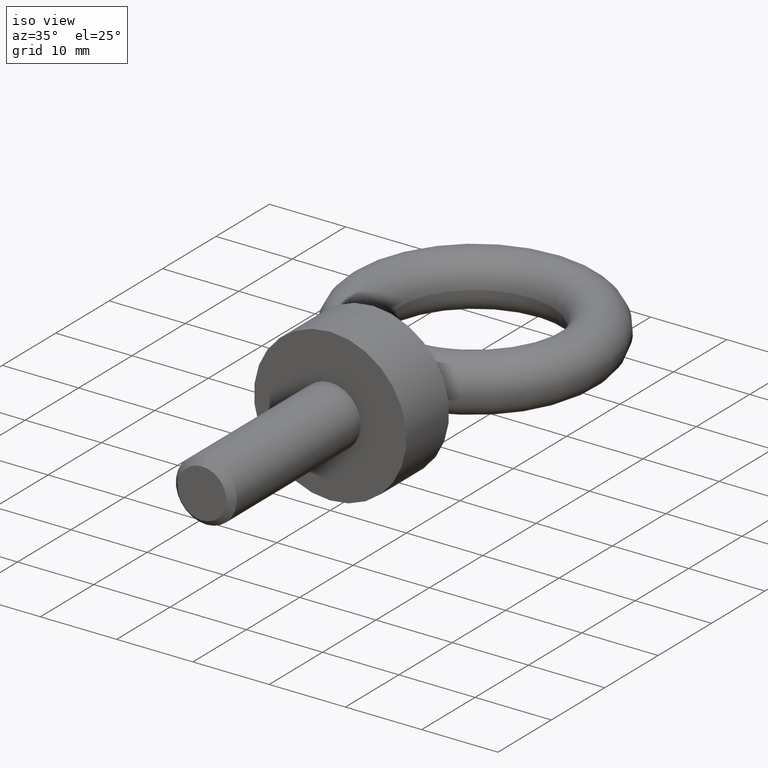
[diagram: clean part render]
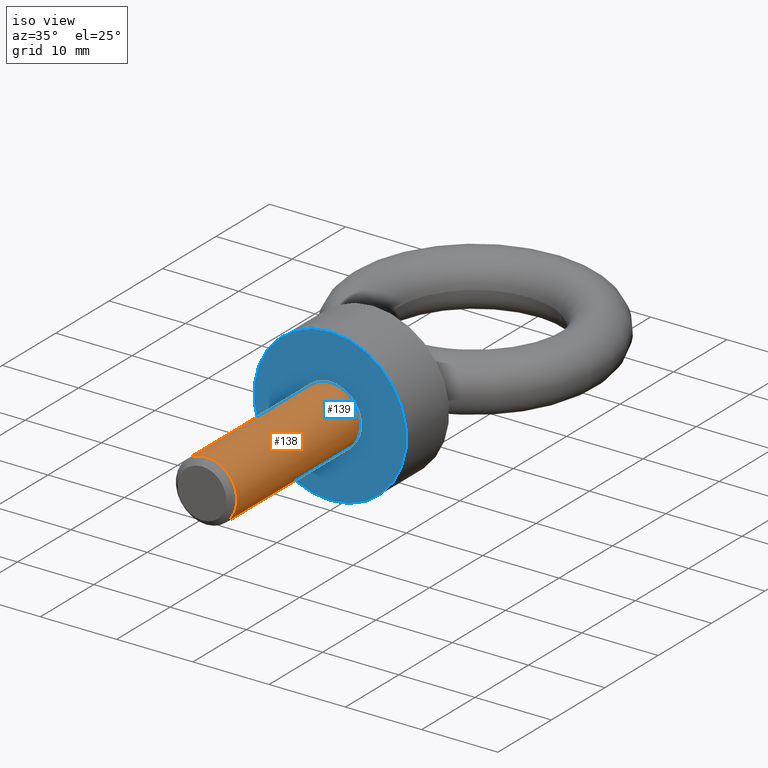
[diagram: same view with the hole feature highlighted: cylindrical wall and planar end face, labeled with their STEP entity ids]
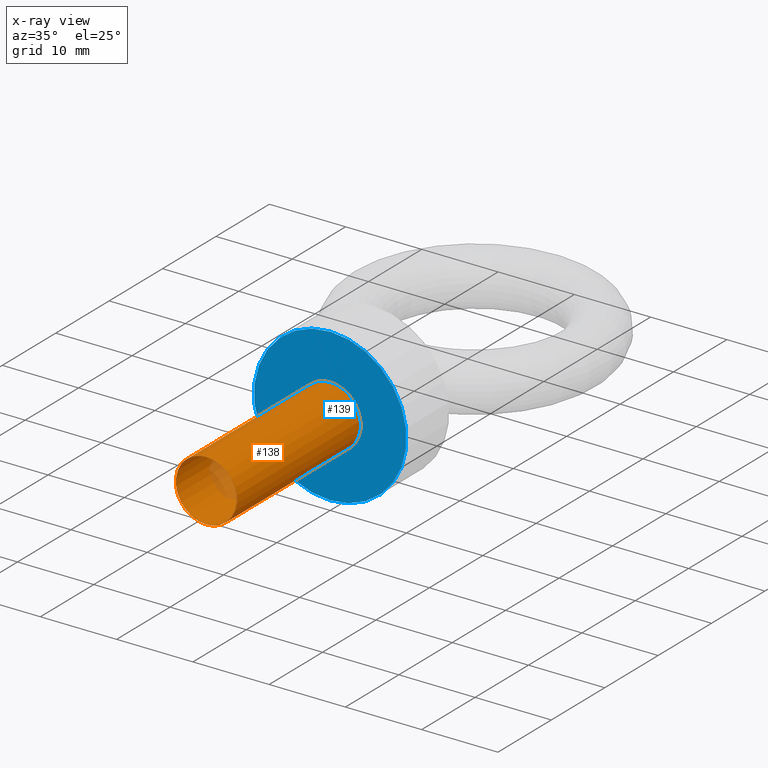
[diagram: x-ray of the same camera — body ghosted, the hole faces saturated]
A machine part, iso view. The highlighted faces form one hole feature of diameter 8 mm: the cylindrical wall (entity #138, orange) and its adjacent planar end face (entity #139, blue) — they share a circular edge in the B-rep.
The next image is the same camera in x-ray (body ghosted, the hole faces saturated) — the bore reads through the body.
Wall:
#82=FACE_BOUND('',#217,.T.);
#83=FACE_BOUND('',#218,.T.);
#138=ADVANCED_FACE('',(#82,#83),#170,.T.);
#170=CYLINDRICAL_SURFACE('',#644,4.);
#217=EDGE_LOOP('',(#362));
#218=EDGE_LOOP('',(#363));
#295=CIRCLE('',#642,4.);
#296=CIRCLE('',#643,4.);
#362=ORIENTED_EDGE('',*,*,#565,.T.);
#363=ORIENTED_EDGE('',*,*,#566,.F.);
#508=VERTEX_POINT('',#1039);
#509=VERTEX_POINT('',#1041);
#565=EDGE_CURVE('',#508,#508,#295,.T.);
#566=EDGE_CURVE('',#509,#509,#296,.T.);
#642=AXIS2_PLACEMENT_3D('',#1038,#722,#723);
#643=AXIS2_PLACEMENT_3D('',#1040,#724,#725);
#644=AXIS2_PLACEMENT_3D('',#1042,#726,#727);
#722=DIRECTION('',(0.,1.,0.));
#723=DIRECTION('',(0.,0.,1.));
#724=DIRECTION('',(0.,1.,0.));
#725=DIRECTION('',(0.,0.,1.));
#726=DIRECTION('',(0.,1.,0.));
#727=DIRECTION('',(0.,0.,1.));
#1038=CARTESIAN_POINT('',(0.,-23.2,0.));
#1039=CARTESIAN_POINT('',(0.,-23.2,4.));
#1040=CARTESIAN_POINT('',(0.,0.,0.));
#1041=CARTESIAN_POINT('',(0.,0.,4.));
#1042=CARTESIAN_POINT('',(0.,-24.,0.));
End face:
#84=FACE_BOUND('',#219,.T.);
#85=FACE_BOUND('',#220,.T.);
#119=PLANE('',#646);
#139=ADVANCED_FACE('',(#84,#85),#119,.F.);
#219=EDGE_LOOP('',(#364));
#220=EDGE_LOOP('',(#365));
#296=CIRCLE('',#643,4.);
#297=CIRCLE('',#645,10.);
#364=ORIENTED_EDGE('',*,*,#567,.F.);
#365=ORIENTED_EDGE('',*,*,#566,.T.);
#509=VERTEX_POINT('',#1041);
#510=VERTEX_POINT('',#1044);
#566=EDGE_CURVE('',#509,#509,#296,.T.);
#567=EDGE_CURVE('',#510,#510,#297,.T.);
#643=AXIS2_PLACEMENT_3D('',#1040,#724,#725);
#645=AXIS2_PLACEMENT_3D('',#1043,#728,#729);
#646=AXIS2_PLACEMENT_3D('',#1045,#730,#731);
#724=DIRECTION('',(0.,1.,0.));
#725=DIRECTION('',(0.,0.,1.));
#728=DIRECTION('',(0.,1.,0.));
#729=DIRECTION('',(0.,0.,1.));
#730=DIRECTION('',(0.,1.,0.));
#731=DIRECTION('',(0.,0.,1.));
#1040=CARTESIAN_POINT('',(0.,0.,0.));
#1041=CARTESIAN_POINT('',(0.,0.,4.));
#1043=CARTESIAN_POINT('',(0.,0.,0.));
#1044=CARTESIAN_POINT('',(0.,0.,10.));
#1045=CARTESIAN_POINT('',(4.,-4.44089209850063E-16,0.));